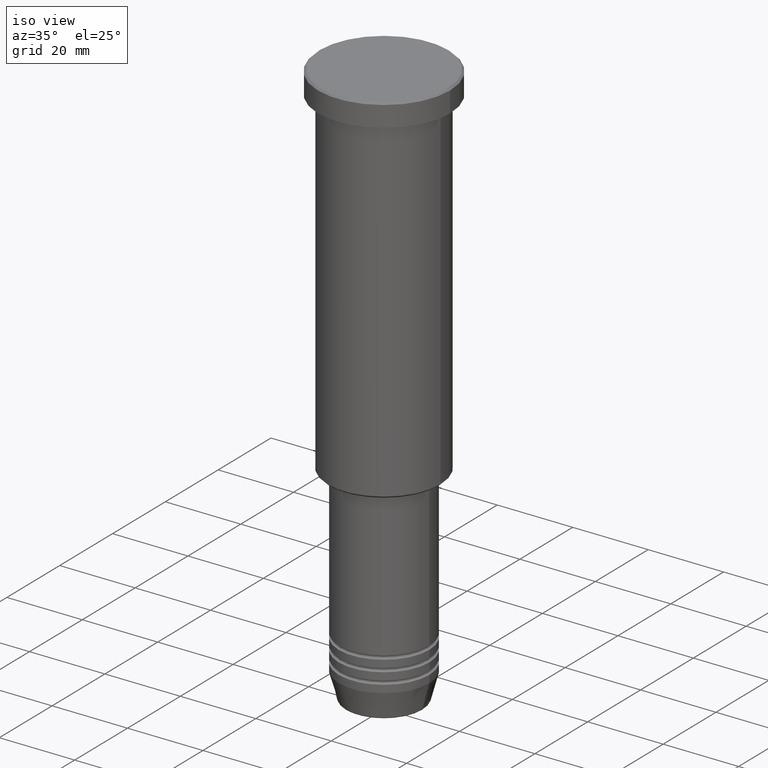
[diagram: clean part render]
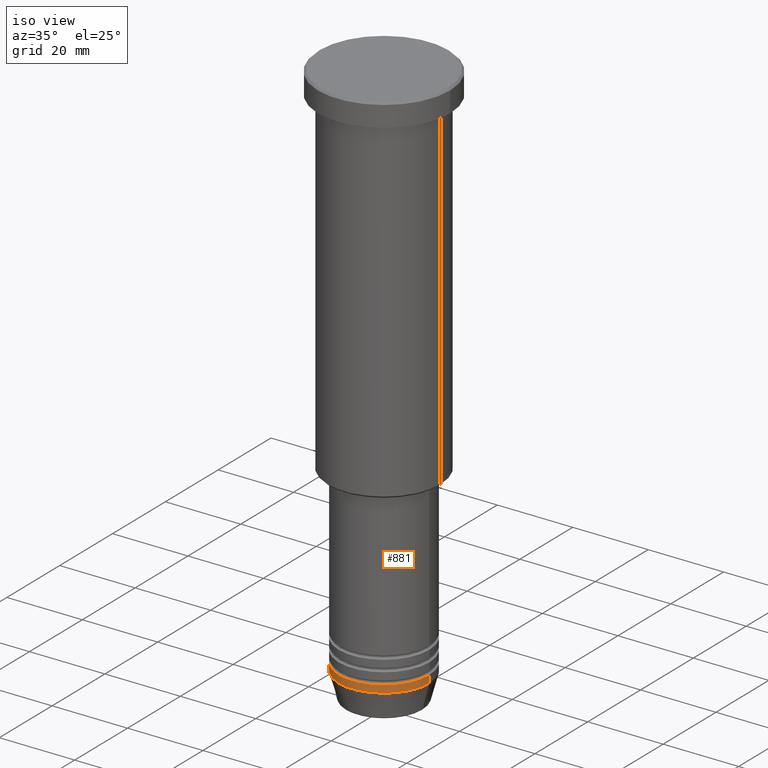
[diagram: same view with one face highlighted and labeled with its STEP entity id]
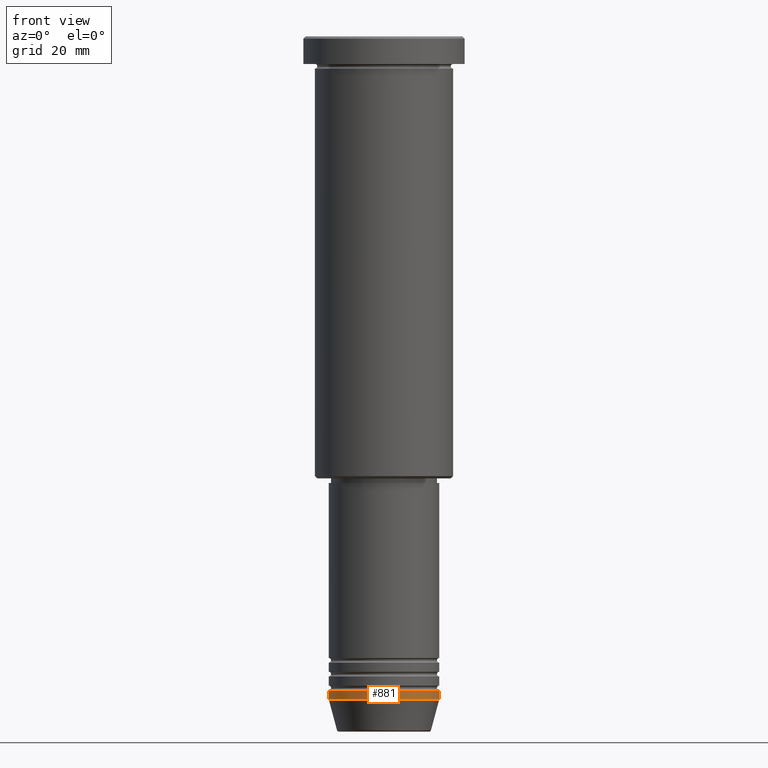
[diagram: same view with one face highlighted and labeled with its STEP entity id]
A machine part, iso view. The second image highlights one B-rep face of the part: STEP entity #881.
A second angle (front view) of the same face is appended — the face is thin or edge-on in the first view.
In plain terms, the highlighted cylindrical surface (partial cylindrical patch) has radius 12 mm, axis along (-0, -0, 1).
Its self-contained STEP definition (entity closure, byte-faithful):
#70 = EDGE_LOOP ( 'NONE', ( #1074, #572, #790, #140 ) ) ;
#90 = AXIS2_PLACEMENT_3D ( 'NONE', #504, #251, #894 ) ;
#92 = VECTOR ( 'NONE', #406, 1000.000000000000000 ) ;
#124 = CARTESIAN_POINT ( 'NONE',  ( 12.00000000000000000, 0.000000000000000000, 0.000000000000000000 ) ) ;
#132 = CARTESIAN_POINT ( 'NONE',  ( 12.00000000000000000, 0.000000000000000000, -144.0000000000000284 ) ) ;
#140 = ORIENTED_EDGE ( 'NONE', *, *, #585, .F. ) ;
#141 = DIRECTION ( 'NONE',  ( 1.000000000000000000, 0.000000000000000000, 0.000000000000000000 ) ) ;
#148 = CIRCLE ( 'NONE', #1153, 12.00000000000000000 ) ;
#155 = DIRECTION ( 'NONE',  ( -0.000000000000000000, -0.000000000000000000, 1.000000000000000000 ) ) ;
#212 = EDGE_CURVE ( 'NONE', #562, #860, #1025, .T. ) ;
#221 = CARTESIAN_POINT ( 'NONE',  ( -12.00000000000000000, 1.469576158976823947E-15, -144.0000000000000284 ) ) ;
#251 = DIRECTION ( 'NONE',  ( -0.000000000000000000, -0.000000000000000000, 1.000000000000000000 ) ) ;
#390 = DIRECTION ( 'NONE',  ( -0.000000000000000000, -0.000000000000000000, 1.000000000000000000 ) ) ;
#393 = CARTESIAN_POINT ( 'NONE',  ( -12.00000000000000000, 1.469576158976823947E-15, -142.0000000000000284 ) ) ;
#406 = DIRECTION ( 'NONE',  ( -0.000000000000000000, -0.000000000000000000, 1.000000000000000000 ) ) ;
#492 = VERTEX_POINT ( 'NONE', #393 ) ;
#504 = CARTESIAN_POINT ( 'NONE',  ( 0.000000000000000000, 0.000000000000000000, -142.0000000000000284 ) ) ;
#562 = VERTEX_POINT ( 'NONE', #132 ) ;
#566 = AXIS2_PLACEMENT_3D ( 'NONE', #595, #390, #141 ) ;
#572 = ORIENTED_EDGE ( 'NONE', *, *, #1157, .T. ) ;
#585 = EDGE_CURVE ( 'NONE', #492, #860, #833, .T. ) ;
#595 = CARTESIAN_POINT ( 'NONE',  ( 0.000000000000000000, 0.000000000000000000, 0.000000000000000000 ) ) ;
#670 = CARTESIAN_POINT ( 'NONE',  ( 12.00000000000000000, 0.000000000000000000, -142.0000000000000284 ) ) ;
#708 = CARTESIAN_POINT ( 'NONE',  ( 0.000000000000000000, 0.000000000000000000, -144.0000000000000284 ) ) ;
#790 = ORIENTED_EDGE ( 'NONE', *, *, #212, .T. ) ;
#793 = VECTOR ( 'NONE', #827, 1000.000000000000000 ) ;
#827 = DIRECTION ( 'NONE',  ( -0.000000000000000000, -0.000000000000000000, 1.000000000000000000 ) ) ;
#833 = CIRCLE ( 'NONE', #90, 12.00000000000000000 ) ;
#860 = VERTEX_POINT ( 'NONE', #670 ) ;
#866 = DIRECTION ( 'NONE',  ( 1.000000000000000000, 0.000000000000000000, 0.000000000000000000 ) ) ;
#881 = ADVANCED_FACE ( 'NONE', ( #1026 ), #953, .T. ) ;
#894 = DIRECTION ( 'NONE',  ( 1.000000000000000000, 0.000000000000000000, 0.000000000000000000 ) ) ;
#953 = CYLINDRICAL_SURFACE ( 'NONE', #566, 12.00000000000000000 ) ;
#963 = EDGE_CURVE ( 'NONE', #988, #492, #1020, .T. ) ;
#988 = VERTEX_POINT ( 'NONE', #221 ) ;
#1020 = LINE ( 'NONE', #1112, #92 ) ;
#1025 = LINE ( 'NONE', #124, #793 ) ;
#1026 = FACE_OUTER_BOUND ( 'NONE', #70, .T. ) ;
#1074 = ORIENTED_EDGE ( 'NONE', *, *, #963, .F. ) ;
#1112 = CARTESIAN_POINT ( 'NONE',  ( -12.00000000000000000, 1.469576158976823947E-15, 0.000000000000000000 ) ) ;
#1153 = AXIS2_PLACEMENT_3D ( 'NONE', #708, #155, #866 ) ;
#1157 = EDGE_CURVE ( 'NONE', #988, #562, #148, .T. ) ;